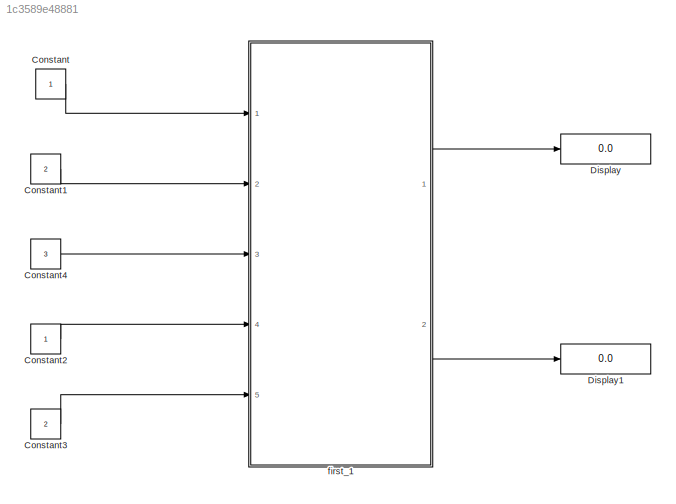
MODEL slx_1c3589e48881
KIND model
CONFIG AbsTol = auto
CONFIG EnableMultiTasking = off
CONFIG FixedStep = auto
CONFIG MaxStep = auto
CONFIG MinStep = auto
CONFIG RelTol = 1e-3
CONFIG SampleTimeConstraint = Unconstrained
CONFIG SolverName = FixedStepAuto
CONFIG StartTime = 0.0
CONFIG StopTime = 10
BLOCK [Constant] Constant
BLOCK [Constant] Constant1
  Value = 2
BLOCK [Constant] Constant2
BLOCK [Constant] Constant3
  Value = 2
BLOCK [Constant] Constant4
  Value = 3
BLOCK [Display] Display
  Decimation = 1
  Ports = [1]
BLOCK [Display] Display1
  Decimation = 1
  Ports = [1]
BLOCK [ModelReference] first_1
  ModelNameDialog = first_1
  ModelReferenceVersion = 1.4
  Ports = [5, 2]
LINE Constant1:1 -> first_1:2
LINE Constant2:1 -> first_1:4
LINE Constant3:1 -> first_1:5
LINE Constant4:1 -> first_1:3
LINE Constant:1 -> first_1:1
LINE first_1:1 -> Display:1
LINE first_1:2 -> Display1:1
